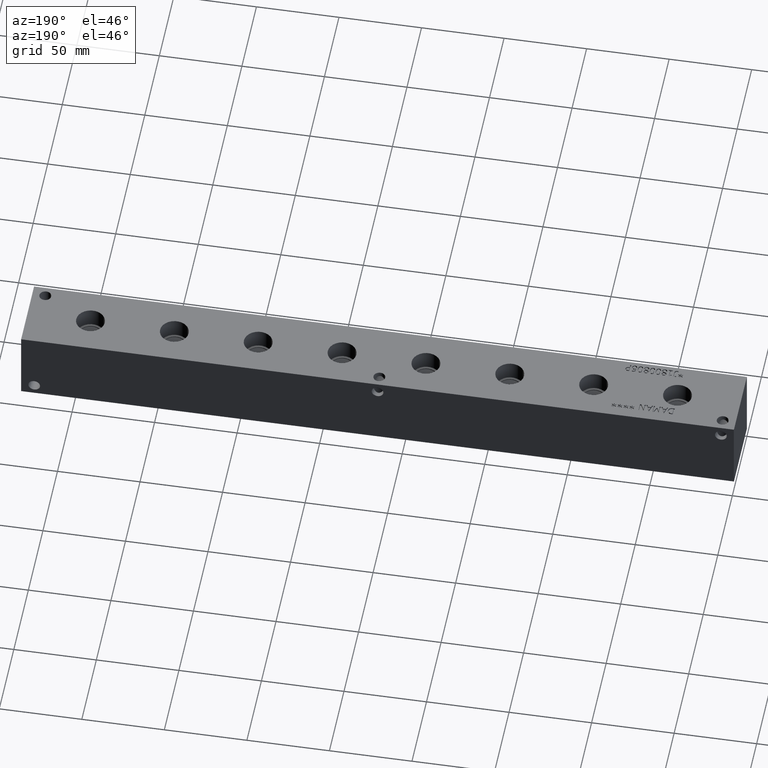
[diagram: clean part render]
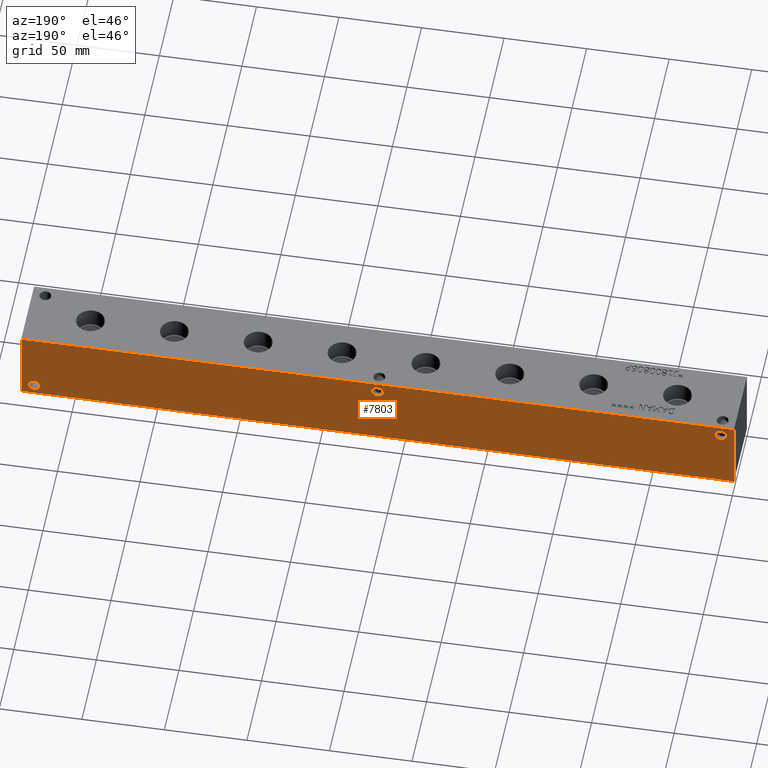
[diagram: same view with one face highlighted and labeled with its STEP entity id]
A machine part, auxiliary view. The second image highlights one B-rep face of the part: STEP entity #7803.
In plain terms, the highlighted planar face has unit normal (0, 1, 0).
Its self-contained STEP definition (entity closure, byte-faithful):
#166=CIRCLE('',#8143,3.5687);
#169=CIRCLE('',#8152,3.5687);
#172=CIRCLE('',#8161,3.5687);
#274=FACE_BOUND('',#1370,.T.);
#275=FACE_BOUND('',#1371,.T.);
#276=FACE_BOUND('',#1372,.T.);
#511=PLANE('',#8244);
#911=FACE_OUTER_BOUND('',#1369,.T.);
#1369=EDGE_LOOP('',(#6939,#6940,#6941,#6942));
#1370=EDGE_LOOP('',(#6943));
#1371=EDGE_LOOP('',(#6944));
#1372=EDGE_LOOP('',(#6945));
#1647=LINE('',#12153,#2350);
#2088=LINE('',#13500,#2791);
#2089=LINE('',#13503,#2792);
#2090=LINE('',#13504,#2793);
#2350=VECTOR('',#8627,10.);
#2791=VECTOR('',#9792,10.);
#2792=VECTOR('',#9795,10.);
#2793=VECTOR('',#9796,10.);
#3341=VERTEX_POINT('',#12150);
#3342=VERTEX_POINT('',#12152);
#3695=VERTEX_POINT('',#13298);
#3700=VERTEX_POINT('',#13314);
#3705=VERTEX_POINT('',#13330);
#3757=VERTEX_POINT('',#13496);
#3759=VERTEX_POINT('',#13502);
#4231=EDGE_CURVE('',#3341,#3342,#1647,.T.);
#4736=EDGE_CURVE('',#3695,#3695,#166,.T.);
#4745=EDGE_CURVE('',#3700,#3700,#169,.T.);
#4754=EDGE_CURVE('',#3705,#3705,#172,.T.);
#4830=EDGE_CURVE('',#3757,#3342,#2088,.T.);
#4831=EDGE_CURVE('',#3759,#3757,#2089,.T.);
#4832=EDGE_CURVE('',#3759,#3341,#2090,.T.);
#6939=ORIENTED_EDGE('',*,*,#4831,.T.);
#6940=ORIENTED_EDGE('',*,*,#4830,.T.);
#6941=ORIENTED_EDGE('',*,*,#4231,.F.);
#6942=ORIENTED_EDGE('',*,*,#4832,.F.);
#6943=ORIENTED_EDGE('',*,*,#4736,.T.);
#6944=ORIENTED_EDGE('',*,*,#4745,.T.);
#6945=ORIENTED_EDGE('',*,*,#4754,.T.);
#7803=ADVANCED_FACE('',(#911,#274,#275,#276),#511,.T.);
#8143=AXIS2_PLACEMENT_3D('',#13300,#9554,#9555);
#8152=AXIS2_PLACEMENT_3D('',#13316,#9574,#9575);
#8161=AXIS2_PLACEMENT_3D('',#13332,#9594,#9595);
#8244=AXIS2_PLACEMENT_3D('',#13501,#9793,#9794);
#8627=DIRECTION('',(-1.,0.,0.));
#9554=DIRECTION('center_axis',(0.,-1.,0.));
#9555=DIRECTION('ref_axis',(1.,0.,0.));
#9574=DIRECTION('center_axis',(0.,-1.,0.));
#9575=DIRECTION('ref_axis',(1.,0.,0.));
#9594=DIRECTION('center_axis',(0.,-1.,0.));
#9595=DIRECTION('ref_axis',(1.,0.,0.));
#9792=DIRECTION('',(0.,0.,1.));
#9793=DIRECTION('center_axis',(0.,1.,0.));
#9794=DIRECTION('ref_axis',(-1.,0.,0.));
#9795=DIRECTION('',(-1.,0.,0.));
#9796=DIRECTION('',(0.,0.,1.));
#12150=CARTESIAN_POINT('',(431.8,44.45,44.45));
#12152=CARTESIAN_POINT('',(0.,44.45,44.45));
#12153=CARTESIAN_POINT('',(431.8,44.45,44.45));
#13298=CARTESIAN_POINT('',(212.3313,44.45,38.1));
#13300=CARTESIAN_POINT('Origin',(215.9,44.45,38.1));
#13314=CARTESIAN_POINT('',(4.3561,44.45,38.1));
#13316=CARTESIAN_POINT('Origin',(7.9248,44.45,38.1));
#13330=CARTESIAN_POINT('',(420.3065,44.45,6.35));
#13332=CARTESIAN_POINT('Origin',(423.8752,44.45,6.35));
#13496=CARTESIAN_POINT('',(0.,44.45,0.));
#13500=CARTESIAN_POINT('',(0.,44.45,0.));
#13501=CARTESIAN_POINT('Origin',(431.8,44.45,0.));
#13502=CARTESIAN_POINT('',(431.8,44.45,0.));
#13503=CARTESIAN_POINT('',(431.8,44.45,0.));
#13504=CARTESIAN_POINT('',(431.8,44.45,0.));